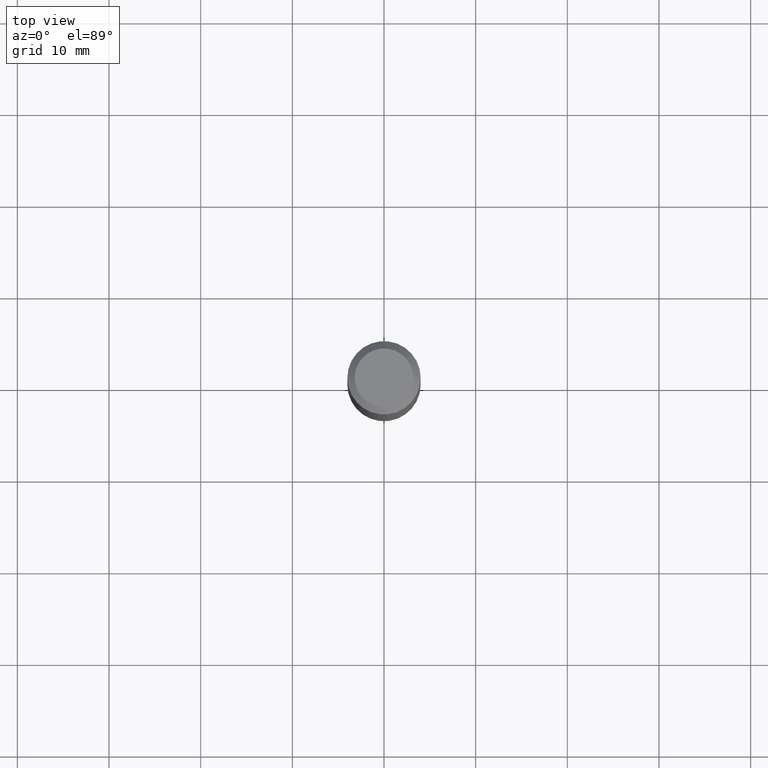
[diagram: clean part render]
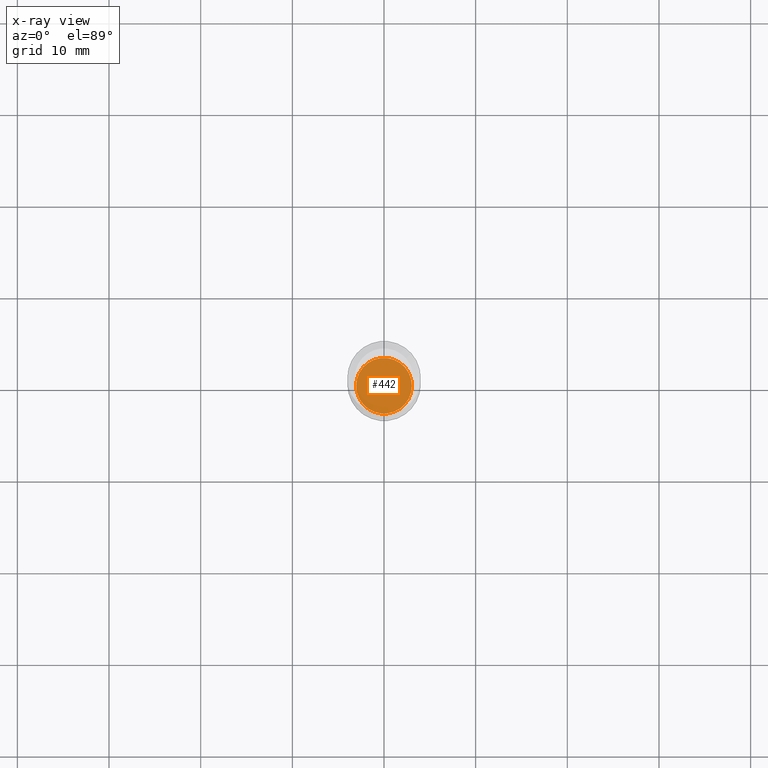
[diagram: x-ray — body ghosted, one internal face saturated and labeled with its STEP entity id]
A machine part, top view, then the same camera in x-ray: the body is ghosted and one INTERNAL B-rep face — a face not visible from any outside direction — is saturated and labeled: STEP entity #442.
In plain terms, the highlighted planar face has unit normal (-0, 0, 1).
Its self-contained STEP definition (entity closure, byte-faithful):
#1 = CARTESIAN_POINT ( 'NONE',  ( 4.919794144283257815E-29, -7.024162157484641016E-15, -2.011800000000000033 ) ) ;
#9 = DIRECTION ( 'NONE',  ( -2.438088387897960049E-29, 3.491481338843145188E-15, 1.000000000000000000 ) ) ;
#24 = EDGE_CURVE ( 'NONE', #467, #350, #124, .T. ) ;
#90 = AXIS2_PLACEMENT_3D ( 'NONE', #1, #439, #413 ) ;
#124 = CIRCLE ( 'NONE', #90, 0.1195999999999999980 ) ;
#139 = ORIENTED_EDGE ( 'NONE', *, *, #456, .F. ) ;
#152 = AXIS2_PLACEMENT_3D ( 'NONE', #403, #226, #398 ) ;
#226 = DIRECTION ( 'NONE',  ( -2.445468806185136597E-29, 3.491481338843145583E-15, 1.000000000000000000 ) ) ;
#278 = PLANE ( 'NONE',  #370 ) ;
#311 = CARTESIAN_POINT ( 'NONE',  ( 0.1195999999999999980, -7.859324493735918300E-15, -2.011800000000000033 ) ) ;
#315 = DIRECTION ( 'NONE',  ( 1.000000000000000000, -6.982962677686265922E-15, 4.876176775795935793E-29 ) ) ;
#339 = ORIENTED_EDGE ( 'NONE', *, *, #24, .F. ) ;
#350 = VERTEX_POINT ( 'NONE', #311 ) ;
#358 = CARTESIAN_POINT ( 'NONE',  ( -0.1195999999999999980, -6.171703818341449711E-15, -2.011800000000000033 ) ) ;
#370 = AXIS2_PLACEMENT_3D ( 'NONE', #389, #9, #315 ) ;
#389 = CARTESIAN_POINT ( 'NONE',  ( 4.919794144283257815E-29, -7.024162157484641016E-15, -2.011800000000000033 ) ) ;
#395 = CIRCLE ( 'NONE', #152, 0.1195999999999999980 ) ;
#398 = DIRECTION ( 'NONE',  ( 1.000000000000000000, -6.982962677686269866E-15, 0.000000000000000000 ) ) ;
#400 = FACE_OUTER_BOUND ( 'NONE', #402, .T. ) ;
#402 = EDGE_LOOP ( 'NONE', ( #139, #339 ) ) ;
#403 = CARTESIAN_POINT ( 'NONE',  ( 4.919794144283257815E-29, -7.024162157484641016E-15, -2.011800000000000033 ) ) ;
#413 = DIRECTION ( 'NONE',  ( 1.000000000000000000, -6.982962677686269866E-15, 0.000000000000000000 ) ) ;
#439 = DIRECTION ( 'NONE',  ( -2.445468806185136597E-29, 3.491481338843145583E-15, 1.000000000000000000 ) ) ;
#442 = ADVANCED_FACE ( 'NONE', ( #400 ), #278, .F. ) ;
#456 = EDGE_CURVE ( 'NONE', #350, #467, #395, .T. ) ;
#467 = VERTEX_POINT ( 'NONE', #358 ) ;